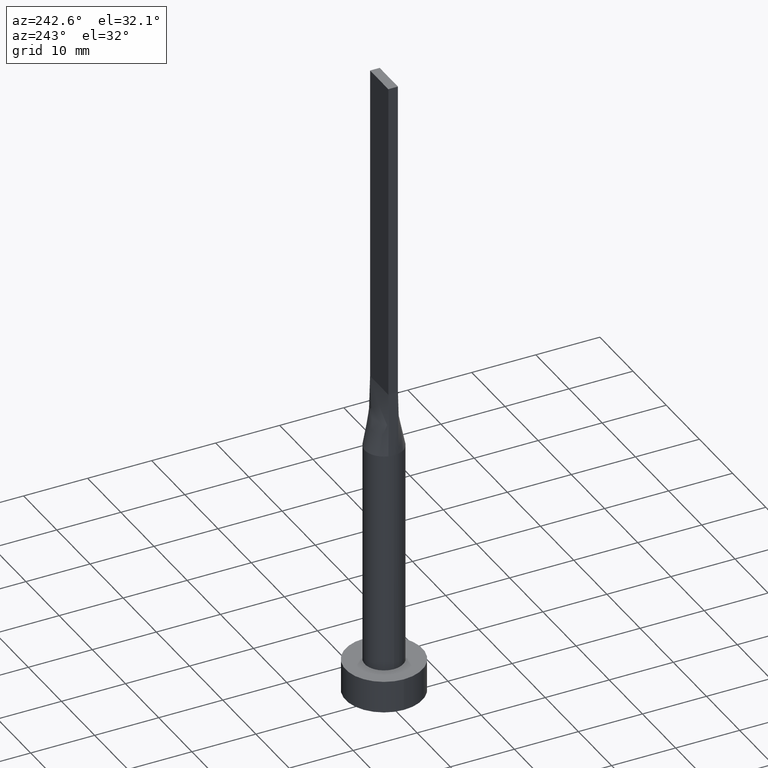
[diagram: clean part render]
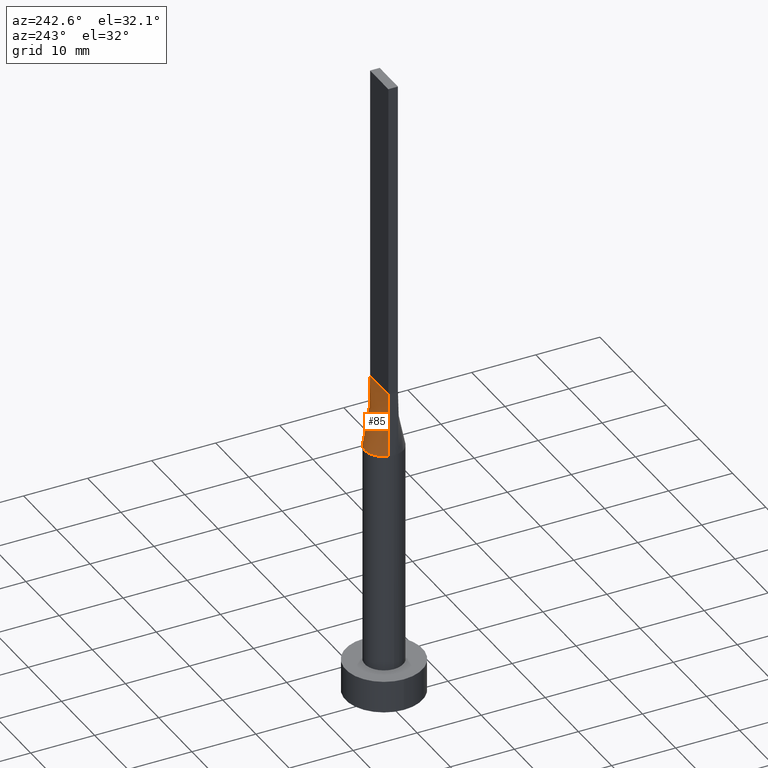
[diagram: same view with one face highlighted and labeled with its STEP entity id]
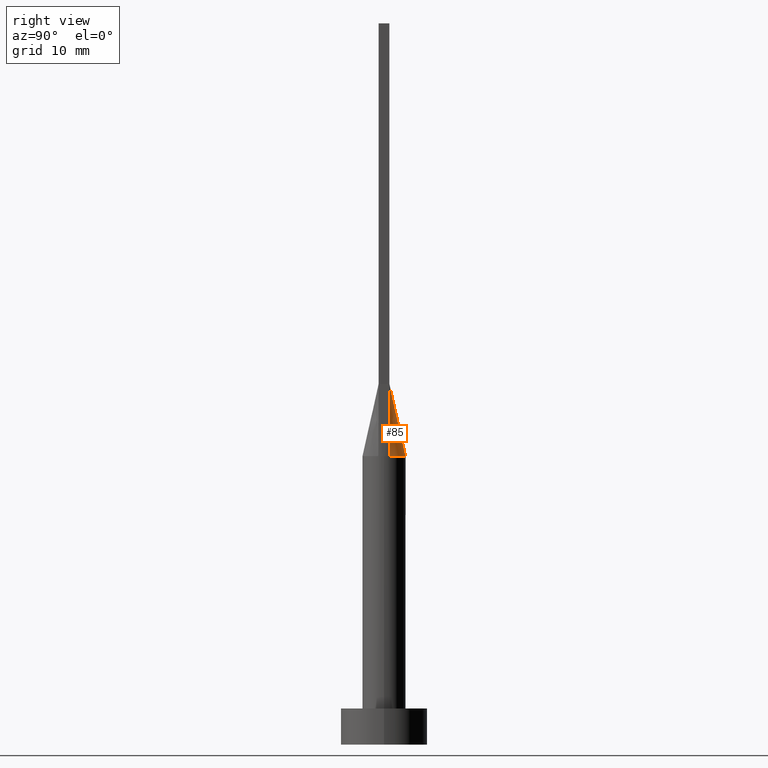
[diagram: same view with one face highlighted and labeled with its STEP entity id]
A machine part, auxiliary view. The second image highlights one B-rep face of the part: STEP entity #85.
A second angle (right view) of the same face is appended — the face is thin or edge-on in the first view.
In plain terms, the highlighted face is a freeform B-spline surface patch.
Its self-contained STEP definition (entity closure, byte-faithful):
#12 = CARTESIAN_POINT ( 'NONE',  ( -0.2291666666666670460, 0.7500000000000003331, 50.00000000000000711 ) ) ;
#13 = VERTEX_POINT ( 'NONE', #369 ) ;
#16 = CARTESIAN_POINT ( 'NONE',  ( -2.750000000000000000, 0.7500000000000002220, 50.00000000000000000 ) ) ;
#20 = CARTESIAN_POINT ( 'NONE',  ( 2.894291463713197121, 0.7893522173763263261, 40.00000000000000000 ) ) ;
#21 = CARTESIAN_POINT ( 'NONE',  ( 0.3818979204996085230, 3.000000000000001332, 40.00000000000000000 ) ) ;
#24 = CARTESIAN_POINT ( 'NONE',  ( 1.604166666666666519, 0.7500000000000002220, 50.00000000000000000 ) ) ;
#57 = CARTESIAN_POINT ( 'NONE',  ( 1.751288851749022379, 2.458468820606022565, 39.99999999999998579 ) ) ;
#60 = CARTESIAN_POINT ( 'NONE',  ( -1.145833333333333703, 0.7500000000000002220, 50.00000000000000000 ) ) ;
#65 = CARTESIAN_POINT ( 'NONE',  ( -0.7628506052746797383, 2.924692134573155133, 40.00000000000000000 ) ) ;
#67 = CARTESIAN_POINT ( 'NONE',  ( 2.822145731856598339, 0.7696761086881640512, 45.00000000000000000 ) ) ;
#69 = CARTESIAN_POINT ( 'NONE',  ( -1.751288851749021491, 2.458468820606022565, 39.99999999999999289 ) ) ;
#73 = CARTESIAN_POINT ( 'NONE',  ( -0.3818979204996078569, 3.000000000000000888, 40.00000000000000000 ) ) ;
#85 = ADVANCED_FACE ( 'NONE', ( #334 ), #171, .T. ) ;
#98 = VECTOR ( 'NONE', #234, 1000.000000000000000 ) ;
#108 = VECTOR ( 'NONE', #428, 1000.000000000000000 ) ;
#112 = CARTESIAN_POINT ( 'NONE',  ( -2.291666666666666519, 0.7500000000000002220, 50.00000000000000000 ) ) ;
#118 = CARTESIAN_POINT ( 'NONE',  ( -0.7628506052746797383, 2.924692134573155133, 40.00000000000000000 ) ) ;
#121 = LINE ( 'NONE', #308, #98 ) ;
#146 = CARTESIAN_POINT ( 'NONE',  ( -2.894506632021299541, 0.7894116946786272626, 40.00000000000000000 ) ) ;
#147 = CARTESIAN_POINT ( 'NONE',  ( -1.447928580458858416, 2.653161878569119558, 40.00000000000000000 ) ) ;
#153 = CARTESIAN_POINT ( 'NONE',  ( 2.733316749964668446, 1.269511353635831341, 40.00000000000002132 ) ) ;
#154 = CARTESIAN_POINT ( 'NONE',  ( 2.894482401701604424, 0.7894050286368272662, 40.00000000000000000 ) ) ;
#156 = CARTESIAN_POINT ( 'NONE',  ( -0.9166666666666669627, 0.7500000000000002220, 50.00000000000000000 ) ) ;
#160 = CARTESIAN_POINT ( 'NONE',  ( -1.447928580458858416, 2.653161878569119558, 40.00000000000000000 ) ) ;
#165 = CARTESIAN_POINT ( 'NONE',  ( 2.442412046818595250, 1.765588549521970529, 40.00000000000000711 ) ) ;
#171 = B_SPLINE_SURFACE_WITH_KNOTS ( 'NONE', 3, 1, ( 
 ( #20, #292 ),
 ( #468, #429 ),
 ( #153, #203 ),
 ( #385, #250 ),
 ( #286, #24 ),
 ( #57, #332 ),
 ( #329, #205 ),
 ( #559, #556 ),
 ( #554, #241 ),
 ( #387, #12 ),
 ( #65, #511 ),
 ( #147, #156 ),
 ( #69, #60 ),
 ( #508, #418 ),
 ( #475, #423 ),
 ( #421, #112 ),
 ( #297, #200 ),
 ( #503, #16 ) ),
 .UNSPECIFIED., .F., .F., .F.,
 ( 4, 2, 2, 2, 2, 2, 2, 2, 4 ),
 ( 2, 2 ),
 ( 0.000000000000000000, 0.1250000000000000000, 0.2500000000000000000, 0.3750000000000000000, 0.5000000000000000000, 0.6250000000000000000, 0.7500000000000000000, 0.8750000000000000000, 1.000000000000000000 ),
 ( 0.000000000000000000, 1.000000000000000000 ),
 .UNSPECIFIED. ) ;
#200 = CARTESIAN_POINT ( 'NONE',  ( -2.520833333333333037, 0.7500000000000002220, 50.00000000000000000 ) ) ;
#203 = CARTESIAN_POINT ( 'NONE',  ( 2.291666666666666519, 0.7500000000000002220, 50.00000000000000000 ) ) ;
#204 = CARTESIAN_POINT ( 'NONE',  ( 1.447928580458859305, 2.653161878569118670, 40.00000000000000000 ) ) ;
#205 = CARTESIAN_POINT ( 'NONE',  ( 0.9166666666666664076, 0.7500000000000003331, 50.00000000000000711 ) ) ;
#206 = CARTESIAN_POINT ( 'NONE',  ( -1.751288851749021491, 2.458468820606022565, 39.99999999999999289 ) ) ;
#207 = VERTEX_POINT ( 'NONE', #344 ) ;
#210 = CARTESIAN_POINT ( 'NONE',  ( 2.733316749964668446, 1.269511353635831341, 40.00000000000002132 ) ) ;
#219 = ORIENTED_EDGE ( 'NONE', *, *, #537, .F. ) ;
#234 = DIRECTION ( 'NONE',  ( 0.01442753284129399960, -0.003934781683989194319, 0.9998881756422629552 ) ) ;
#241 = CARTESIAN_POINT ( 'NONE',  ( 0.2291666666666662966, 0.7500000000000003331, 50.00000000000000711 ) ) ;
#248 = CARTESIAN_POINT ( 'NONE',  ( 2.830829925251657997, 1.022044525068634302, 39.99999999999999289 ) ) ;
#250 = CARTESIAN_POINT ( 'NONE',  ( 1.833333333333333037, 0.7500000000000002220, 50.00000000000000000 ) ) ;
#259 = ORIENTED_EDGE ( 'NONE', *, *, #339, .T. ) ;
#263 = B_SPLINE_CURVE_WITH_KNOTS ( 'NONE', 3,
 ( #509, #248, #210, #165, #391, #477, #204, #299, #21, #73, #118, #160, #206, #432, #294, #307, #388, #473 ),
 .UNSPECIFIED., .F., .F.,
 ( 4, 2, 2, 2, 2, 2, 2, 2, 4 ),
 ( 0.000000000000000000, 0.1250000000000000000, 0.2500000000000000000, 0.3750000000000000000, 0.5000000000000000000, 0.6250000000000000000, 0.7500000000000000000, 0.8750000000000000000, 1.000000000000000000 ),
 .UNSPECIFIED. ) ;
#264 = EDGE_CURVE ( 'NONE', #13, #207, #574, .T. ) ;
#267 = EDGE_LOOP ( 'NONE', ( #301, #259, #282, #219 ) ) ;
#282 = ORIENTED_EDGE ( 'NONE', *, *, #264, .F. ) ;
#286 = CARTESIAN_POINT ( 'NONE',  ( 2.248179627679386172, 2.014142483996539834, 39.99999999999999289 ) ) ;
#292 = CARTESIAN_POINT ( 'NONE',  ( 2.750000000000000000, 0.7500000000000002220, 50.00000000000000000 ) ) ;
#294 = CARTESIAN_POINT ( 'NONE',  ( -2.442412046818596139, 1.765588549521969641, 40.00000000000001421 ) ) ;
#297 = CARTESIAN_POINT ( 'NONE',  ( -2.830829925251659329, 1.022044525068634302, 39.99999999999999289 ) ) ;
#299 = CARTESIAN_POINT ( 'NONE',  ( 0.7628506052746800714, 2.924692134573154689, 40.00000000000000000 ) ) ;
#301 = ORIENTED_EDGE ( 'NONE', *, *, #580, .T. ) ;
#307 = CARTESIAN_POINT ( 'NONE',  ( -2.733316749964668002, 1.269511353635830453, 40.00000000000001421 ) ) ;
#308 = CARTESIAN_POINT ( 'NONE',  ( -2.822145731856598339, 0.7696761086881630520, 45.00000000000000000 ) ) ;
#329 = CARTESIAN_POINT ( 'NONE',  ( 1.447928580458859305, 2.653161878569118670, 40.00000000000000000 ) ) ;
#332 = CARTESIAN_POINT ( 'NONE',  ( 1.145833333333333037, 0.7500000000000003331, 50.00000000000000711 ) ) ;
#334 = FACE_OUTER_BOUND ( 'NONE', #267, .T. ) ;
#339 = EDGE_CURVE ( 'NONE', #408, #207, #121, .T. ) ;
#344 = CARTESIAN_POINT ( 'NONE',  ( -2.750000000000000000, 0.7500000000000002220, 50.00000000000000000 ) ) ;
#369 = CARTESIAN_POINT ( 'NONE',  ( 2.750000000000000000, 0.7500000000000002220, 50.00000000000000000 ) ) ;
#385 = CARTESIAN_POINT ( 'NONE',  ( 2.442412046818595250, 1.765588549521970529, 40.00000000000000711 ) ) ;
#387 = CARTESIAN_POINT ( 'NONE',  ( -0.3818979204996078569, 3.000000000000000888, 40.00000000000000000 ) ) ;
#388 = CARTESIAN_POINT ( 'NONE',  ( -2.830829925251659329, 1.022044525068634302, 39.99999999999999289 ) ) ;
#391 = CARTESIAN_POINT ( 'NONE',  ( 2.248179627679386172, 2.014142483996539834, 39.99999999999999289 ) ) ;
#408 = VERTEX_POINT ( 'NONE', #146 ) ;
#418 = CARTESIAN_POINT ( 'NONE',  ( -1.604166666666666963, 0.7500000000000002220, 50.00000000000000000 ) ) ;
#421 = CARTESIAN_POINT ( 'NONE',  ( -2.733316749964668002, 1.269511353635830453, 40.00000000000001421 ) ) ;
#423 = CARTESIAN_POINT ( 'NONE',  ( -1.833333333333333481, 0.7500000000000002220, 50.00000000000000000 ) ) ;
#424 = LINE ( 'NONE', #67, #108 ) ;
#428 = DIRECTION ( 'NONE',  ( -0.01442753284129399960, -0.003934781683989389475, 0.9998881756422629552 ) ) ;
#429 = CARTESIAN_POINT ( 'NONE',  ( 2.520833333333333037, 0.7500000000000002220, 50.00000000000000000 ) ) ;
#432 = CARTESIAN_POINT ( 'NONE',  ( -2.248179627679385728, 2.014142483996540278, 39.99999999999998579 ) ) ;
#456 = DIRECTION ( 'NONE',  ( -1.000000000000000000, -0.000000000000000000, -0.000000000000000000 ) ) ;
#468 = CARTESIAN_POINT ( 'NONE',  ( 2.830829925251657997, 1.022044525068634302, 39.99999999999999289 ) ) ;
#470 = VECTOR ( 'NONE', #456, 1000.000000000000000 ) ;
#473 = CARTESIAN_POINT ( 'NONE',  ( -2.894506632021299541, 0.7894116946786272626, 40.00000000000000000 ) ) ;
#475 = CARTESIAN_POINT ( 'NONE',  ( -2.442412046818596139, 1.765588549521969641, 40.00000000000001421 ) ) ;
#477 = CARTESIAN_POINT ( 'NONE',  ( 1.751288851749022379, 2.458468820606022565, 39.99999999999998579 ) ) ;
#503 = CARTESIAN_POINT ( 'NONE',  ( -2.894291463713196677, 0.7893522173763257710, 40.00000000000000000 ) ) ;
#508 = CARTESIAN_POINT ( 'NONE',  ( -2.248179627679385728, 2.014142483996540278, 39.99999999999998579 ) ) ;
#509 = CARTESIAN_POINT ( 'NONE',  ( 2.894482401701604424, 0.7894050286368272662, 40.00000000000000000 ) ) ;
#511 = CARTESIAN_POINT ( 'NONE',  ( -0.4583333333333337034, 0.7500000000000003331, 50.00000000000000000 ) ) ;
#537 = EDGE_CURVE ( 'NONE', #562, #13, #424, .T. ) ;
#554 = CARTESIAN_POINT ( 'NONE',  ( 0.3818979204996085230, 3.000000000000001332, 40.00000000000000000 ) ) ;
#556 = CARTESIAN_POINT ( 'NONE',  ( 0.4583333333333330373, 0.7500000000000003331, 50.00000000000000711 ) ) ;
#559 = CARTESIAN_POINT ( 'NONE',  ( 0.7628506052746800714, 2.924692134573154689, 40.00000000000000000 ) ) ;
#562 = VERTEX_POINT ( 'NONE', #154 ) ;
#566 = CARTESIAN_POINT ( 'NONE',  ( -2.750000000000000000, 0.7500000000000002220, 50.00000000000000000 ) ) ;
#574 = LINE ( 'NONE', #566, #470 ) ;
#580 = EDGE_CURVE ( 'NONE', #562, #408, #263, .T. ) ;